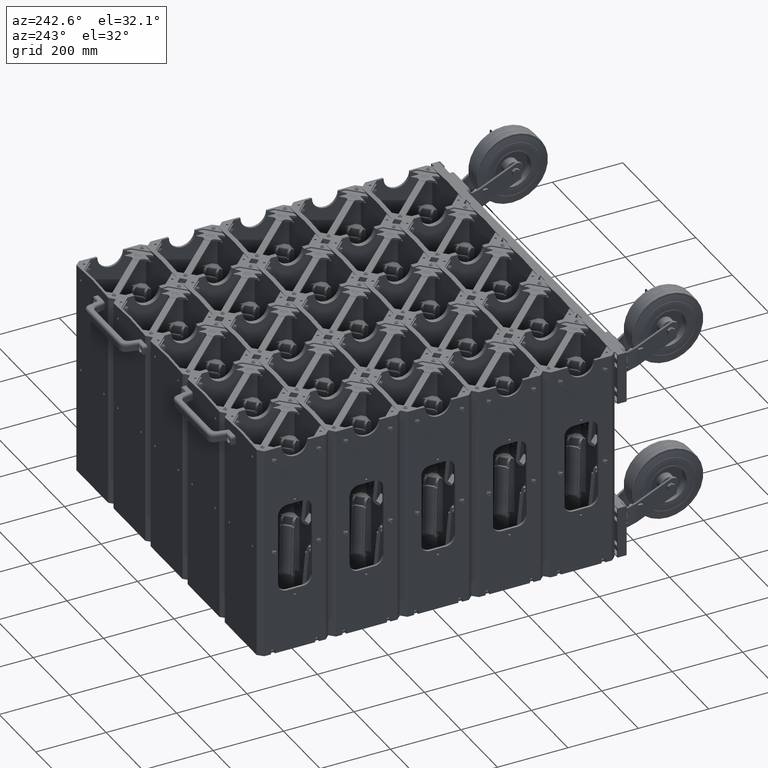
[diagram: clean part render]
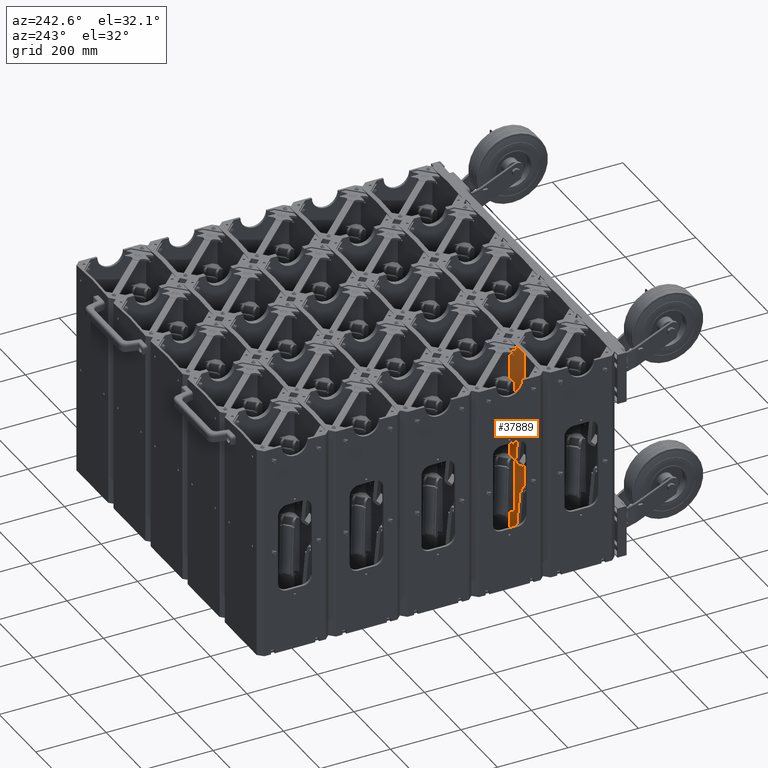
[diagram: same view with one face highlighted and labeled with its STEP entity id]
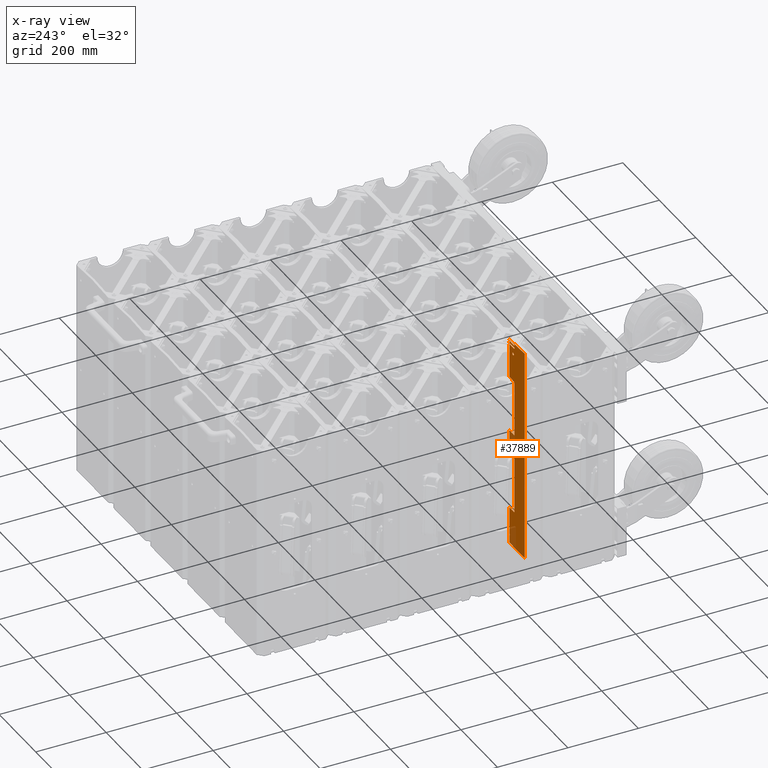
[diagram: x-ray of the same camera — body ghosted, the highlighted face saturated]
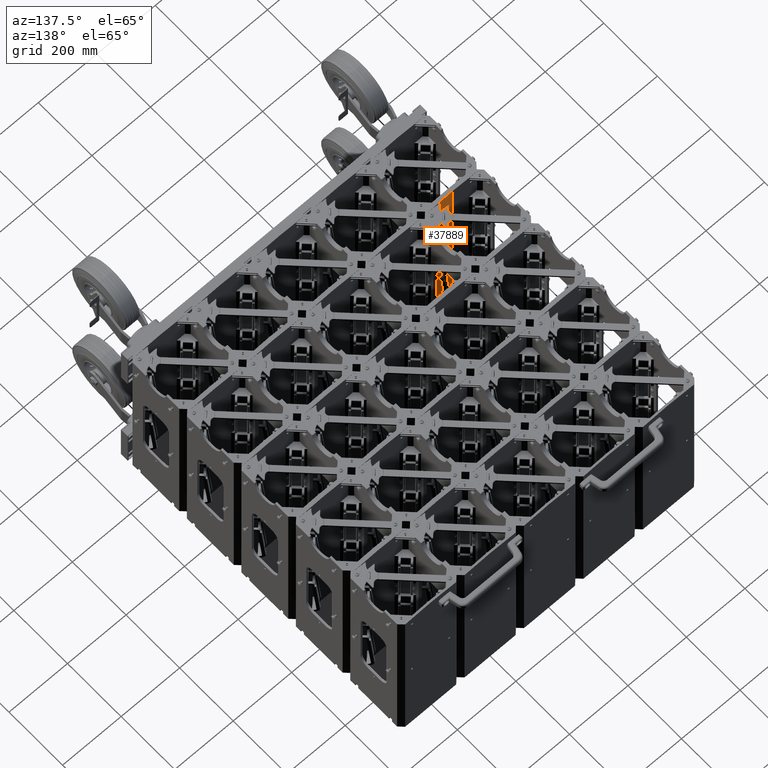
[diagram: same view with one face highlighted and labeled with its STEP entity id]
A machine part, auxiliary view. The second image highlights one B-rep face of the part: STEP entity #37889.
The next image is the same camera in x-ray: the body ghosted, the highlighted face saturated — about 9% of this face is hidden behind the body in this view.
A second angle (auxiliary view) of the same face is appended — the face is thin or edge-on in the first view.
In plain terms, the highlighted planar face has unit normal (0, 1, 0).
Its self-contained STEP definition (entity closure, byte-faithful):
#144 = CIRCLE ( 'NONE', #42054, 0.1329999999999999200 ) ;
#152 = CIRCLE ( 'NONE', #42058, 0.1329999999999999200 ) ;
#260 = EDGE_LOOP ( 'NONE', ( #30502, #30504 ) ) ;
#274 = EDGE_LOOP ( 'NONE', ( #30463, #30465, #30467, #30469, #30470, #30472, #30473, #30475, #30476, #30478, #30479, #30481, #30483, #30485, #30487, #30489, #30491, #30493, #30495, #30497 ) ) ;
#275 = EDGE_LOOP ( 'NONE', ( #30499, #30500 ) ) ;
#1499 = CARTESIAN_POINT ( 'NONE',  ( -3.749999999999932500, 2.500000000000015500, -0.1745312500000002200 ) ) ;
#1511 = DIRECTION ( 'NONE',  ( 1.000000000000000000, 1.365923996832082300E-016, 0.0000000000000000000 ) ) ;
#1512 = DIRECTION ( 'NONE',  ( 0.0000000000000000000, 1.000000000000000000, 0.0000000000000000000 ) ) ;
#1524 = CARTESIAN_POINT ( 'NONE',  ( -3.749999999999906300, 2.500000000000015500, -10.67453125000007900 ) ) ;
#1526 = DIRECTION ( 'NONE',  ( 1.000000000000000000, 1.365923996832082300E-016, 0.0000000000000000000 ) ) ;
#1527 = DIRECTION ( 'NONE',  ( 0.0000000000000000000, 1.000000000000000000, 0.0000000000000000000 ) ) ;
#1648 = CARTESIAN_POINT ( 'NONE',  ( -3.750000000000006700, 1.092739197465706100E-015, 12.10499999999992000 ) ) ;
#1651 = DIRECTION ( 'NONE',  ( 0.0000000000000000000, 0.0000000000000000000, 1.000000000000000000 ) ) ;
#1854 = LINE ( 'NONE', #1648, #1858 ) ;
#1858 = VECTOR ( 'NONE', #1651, 39.37007874015748100 ) ;
#2124 = CIRCLE ( 'NONE', #42115, 0.1329999999999999200 ) ;
#2125 = CIRCLE ( 'NONE', #42116, 0.1329999999999999200 ) ;
#2126 = LINE ( 'NONE', #3464, #2142 ) ;
#2128 = LINE ( 'NONE', #3429, #2130 ) ;
#2130 = VECTOR ( 'NONE', #3448, 39.37007874015748100 ) ;
#2136 = LINE ( 'NONE', #3460, #2137 ) ;
#2137 = VECTOR ( 'NONE', #3462, 39.37007874015748100 ) ;
#2139 = LINE ( 'NONE', #3491, #2160 ) ;
#2142 = VECTOR ( 'NONE', #3475, 39.37007874015748100 ) ;
#2148 = LINE ( 'NONE', #3487, #2149 ) ;
#2149 = VECTOR ( 'NONE', #3489, 39.37007874015748100 ) ;
#2151 = LINE ( 'NONE', #3518, #2166 ) ;
#2152 = LINE ( 'NONE', #3496, #2153 ) ;
#2153 = VECTOR ( 'NONE', #3498, 39.37007874015748100 ) ;
#2160 = VECTOR ( 'NONE', #3516, 39.37007874015748100 ) ;
#2161 = LINE ( 'NONE', #3527, #2184 ) ;
#2163 = LINE ( 'NONE', #3567, #2190 ) ;
#2166 = VECTOR ( 'NONE', #3529, 39.37007874015748100 ) ;
#2172 = LINE ( 'NONE', #3541, #2173 ) ;
#2173 = VECTOR ( 'NONE', #3543, 39.37007874015748100 ) ;
#2176 = LINE ( 'NONE', #3550, #2177 ) ;
#2177 = VECTOR ( 'NONE', #3552, 39.37007874015748100 ) ;
#2182 = LINE ( 'NONE', #3563, #2183 ) ;
#2183 = VECTOR ( 'NONE', #3565, 39.37007874015748100 ) ;
#2184 = VECTOR ( 'NONE', #3570, 39.37007874015748100 ) ;
#2185 = LINE ( 'NONE', #3612, #2208 ) ;
#2190 = VECTOR ( 'NONE', #3583, 39.37007874015748100 ) ;
#2194 = LINE ( 'NONE', #3590, #2195 ) ;
#2195 = VECTOR ( 'NONE', #3592, 39.37007874015748100 ) ;
#2208 = VECTOR ( 'NONE', #3624, 39.37007874015748100 ) ;
#2209 = VECTOR ( 'NONE', #3657, 39.37007874015748900 ) ;
#2210 = LINE ( 'NONE', #3627, #2211 ) ;
#2211 = VECTOR ( 'NONE', #3629, 39.37007874015748100 ) ;
#2214 = LINE ( 'NONE', #3636, #2215 ) ;
#2215 = VECTOR ( 'NONE', #3638, 39.37007874015748100 ) ;
#2221 = LINE ( 'NONE', #3626, #2209 ) ;
#2233 = LINE ( 'NONE', #3682, #2234 ) ;
#2234 = VECTOR ( 'NONE', #3684, 39.37007874015748100 ) ;
#2250 = LINE ( 'NONE', #3723, #2251 ) ;
#2251 = VECTOR ( 'NONE', #3725, 39.37007874015748100 ) ;
#3406 = CARTESIAN_POINT ( 'NONE',  ( -3.749999999999906300, 2.500000000000015500, -10.67453125000007900 ) ) ;
#3412 = CARTESIAN_POINT ( 'NONE',  ( -3.749999999999932500, 2.500000000000015500, -0.1745312500000002200 ) ) ;
#3420 = DIRECTION ( 'NONE',  ( 1.000000000000000000, 1.365923996832082300E-016, 0.0000000000000000000 ) ) ;
#3422 = DIRECTION ( 'NONE',  ( 0.0000000000000000000, 1.000000000000000000, 0.0000000000000000000 ) ) ;
#3426 = DIRECTION ( 'NONE',  ( 1.000000000000000000, 1.365923996832082300E-016, 0.0000000000000000000 ) ) ;
#3427 = DIRECTION ( 'NONE',  ( 0.0000000000000000000, 1.000000000000000000, 0.0000000000000000000 ) ) ;
#3429 = CARTESIAN_POINT ( 'NONE',  ( -3.749999999999954300, 3.333946609406738000, 7.716875000000031900 ) ) ;
#3448 = DIRECTION ( 'NONE',  ( 4.930380657631323800E-030, -1.000000000000000000, -1.094764425253763300E-047 ) ) ;
#3460 = CARTESIAN_POINT ( 'NONE',  ( -3.750000000000129200, 3.333946609406738000, 12.10499999999992000 ) ) ;
#3462 = DIRECTION ( 'NONE',  ( -0.0000000000000000000, -0.0000000000000000000, -1.000000000000000000 ) ) ;
#3464 = CARTESIAN_POINT ( 'NONE',  ( -3.749999999999928100, 2.240846073967627900, 7.716875000000031900 ) ) ;
#3475 = DIRECTION ( 'NONE',  ( 0.0000000000000000000, 0.0000000000000000000, -1.000000000000000000 ) ) ;
#3487 = CARTESIAN_POINT ( 'NONE',  ( -3.749999999999936900, 3.333946609406738000, 1.466875000000000800 ) ) ;
#3489 = DIRECTION ( 'NONE',  ( 4.930380657631323800E-030, -1.000000000000000000, -1.094764425253763300E-047 ) ) ;
#3491 = CARTESIAN_POINT ( 'NONE',  ( -3.750000000000129200, 3.333946609406738000, 12.10499999999992000 ) ) ;
#3496 = CARTESIAN_POINT ( 'NONE',  ( -3.750000000000032900, 3.333946609406738000, -1.283124999999999200 ) ) ;
#3498 = DIRECTION ( 'NONE',  ( 4.930380657631323800E-030, -1.000000000000000000, -1.094764425253763300E-047 ) ) ;
#3516 = DIRECTION ( 'NONE',  ( -0.0000000000000000000, -0.0000000000000000000, -1.000000000000000000 ) ) ;
#3518 = CARTESIAN_POINT ( 'NONE',  ( -3.749999999999958700, 2.240846073967627900, -1.283124999999999200 ) ) ;
#3527 = CARTESIAN_POINT ( 'NONE',  ( -3.749999999999949800, 3.333946609406738000, -11.52512500000007900 ) ) ;
#3529 = DIRECTION ( 'NONE',  ( 0.0000000000000000000, 0.0000000000000000000, -1.000000000000000000 ) ) ;
#3541 = CARTESIAN_POINT ( 'NONE',  ( -3.750000000000129200, 3.333946609406738000, -7.533124999999969000 ) ) ;
#3543 = DIRECTION ( 'NONE',  ( 4.930380657631323800E-030, -1.000000000000000000, -1.094764425253763300E-047 ) ) ;
#3550 = CARTESIAN_POINT ( 'NONE',  ( -3.749999999999949800, 3.333946609406738000, -11.40812500000008000 ) ) ;
#3552 = DIRECTION ( 'NONE',  ( 4.930380657631323800E-030, -1.000000000000000000, -1.094764425253763300E-047 ) ) ;
#3563 = CARTESIAN_POINT ( 'NONE',  ( -3.749999999999949800, 3.333946609406738000, -11.79112500000007900 ) ) ;
#3565 = DIRECTION ( 'NONE',  ( 4.930380657631323800E-030, -1.000000000000000000, -1.094764425253763300E-047 ) ) ;
#3567 = CARTESIAN_POINT ( 'NONE',  ( -3.749999999999928100, 2.240846073967627900, -11.40812500000008000 ) ) ;
#3570 = DIRECTION ( 'NONE',  ( 4.930380657631323800E-030, -1.000000000000000000, -1.094764425253763300E-047 ) ) ;
#3583 = DIRECTION ( 'NONE',  ( 0.0000000000000000000, 0.0000000000000000000, -1.000000000000000000 ) ) ;
#3590 = CARTESIAN_POINT ( 'NONE',  ( -3.749999999999949800, 3.333946609406738000, -11.79112500000007900 ) ) ;
#3592 = DIRECTION ( 'NONE',  ( 0.0000000000000000000, 0.0000000000000000000, 1.000000000000000000 ) ) ;
#3612 = CARTESIAN_POINT ( 'NONE',  ( -3.749999999999928100, 2.240846073967627900, -11.40812500000008000 ) ) ;
#3624 = DIRECTION ( 'NONE',  ( 0.0000000000000000000, 0.0000000000000000000, -1.000000000000000000 ) ) ;
#3626 = CARTESIAN_POINT ( 'NONE',  ( -3.749999999999928100, 5.256536670801101400, -11.82903182478301900 ) ) ;
#3627 = CARTESIAN_POINT ( 'NONE',  ( -3.750000000000129200, 3.333946609406738000, 12.10499999999992000 ) ) ;
#3629 = DIRECTION ( 'NONE',  ( -0.0000000000000000000, -0.0000000000000000000, -1.000000000000000000 ) ) ;
#3636 = CARTESIAN_POINT ( 'NONE',  ( -3.749999999999949800, 3.333946609406738000, -11.90812500000008000 ) ) ;
#3638 = DIRECTION ( 'NONE',  ( 4.930380657631323800E-030, -1.000000000000000000, -1.094764425253763300E-047 ) ) ;
#3657 = DIRECTION ( 'NONE',  ( 1.364045465210371500E-016, -0.9986247173150795100, -0.05242779765904170800 ) ) ;
#3682 = CARTESIAN_POINT ( 'NONE',  ( -3.750000000000107000, 4.000000000000009800, 11.85499999999992000 ) ) ;
#3684 = DIRECTION ( 'NONE',  ( 1.365923996832180900E-016, -1.000000000000000000, -1.094764425253763300E-047 ) ) ;
#3723 = CARTESIAN_POINT ( 'NONE',  ( -3.750000000000129200, 3.333946609406738000, 12.10499999999992000 ) ) ;
#3725 = DIRECTION ( 'NONE',  ( -0.0000000000000000000, -0.0000000000000000000, -1.000000000000000000 ) ) ;
#6753 = FACE_OUTER_BOUND ( 'NONE', #274, .T. ) ;
#6754 = FACE_BOUND ( 'NONE', #275, .T. ) ;
#6756 = FACE_BOUND ( 'NONE', #260, .T. ) ;
#8215 = CARTESIAN_POINT ( 'NONE',  ( -3.750000000000107000, 4.000000000000009800, 12.10499999999992000 ) ) ;
#8220 = PLANE ( 'NONE',  #8929 ) ;
#8221 = DIRECTION ( 'NONE',  ( 1.000000000000000000, 1.365923996832180900E-016, 1.079521069386805600E-076 ) ) ;
#8222 = DIRECTION ( 'NONE',  ( -1.365923996832180900E-016, 1.000000000000000000, 1.094764425253763300E-047 ) ) ;
#8929 = AXIS2_PLACEMENT_3D ( 'NONE', #8215, #8221, #8222 ) ;
#18138 = VERTEX_POINT ( 'NONE', #33319 ) ;
#18139 = VERTEX_POINT ( 'NONE', #33320 ) ;
#18142 = VERTEX_POINT ( 'NONE', #33323 ) ;
#18143 = VERTEX_POINT ( 'NONE', #33324 ) ;
#18195 = VERTEX_POINT ( 'NONE', #33376 ) ;
#18196 = VERTEX_POINT ( 'NONE', #33377 ) ;
#18577 = VERTEX_POINT ( 'NONE', #33758 ) ;
#18578 = VERTEX_POINT ( 'NONE', #33759 ) ;
#18580 = VERTEX_POINT ( 'NONE', #33761 ) ;
#18583 = VERTEX_POINT ( 'NONE', #33764 ) ;
#18584 = VERTEX_POINT ( 'NONE', #33765 ) ;
#18586 = VERTEX_POINT ( 'NONE', #33767 ) ;
#18588 = VERTEX_POINT ( 'NONE', #33769 ) ;
#18591 = VERTEX_POINT ( 'NONE', #33772 ) ;
#18592 = VERTEX_POINT ( 'NONE', #33773 ) ;
#18594 = VERTEX_POINT ( 'NONE', #33775 ) ;
#18596 = VERTEX_POINT ( 'NONE', #33777 ) ;
#18598 = VERTEX_POINT ( 'NONE', #33779 ) ;
#18600 = VERTEX_POINT ( 'NONE', #33781 ) ;
#18602 = VERTEX_POINT ( 'NONE', #33783 ) ;
#18605 = VERTEX_POINT ( 'NONE', #33786 ) ;
#18606 = VERTEX_POINT ( 'NONE', #33787 ) ;
#18608 = VERTEX_POINT ( 'NONE', #33789 ) ;
#18612 = VERTEX_POINT ( 'NONE', #33793 ) ;
#28813 = EDGE_CURVE ( 'NONE', #18138, #18139, #144, .T. ) ;
#28819 = EDGE_CURVE ( 'NONE', #18142, #18143, #152, .T. ) ;
#28870 = EDGE_CURVE ( 'NONE', #18195, #18196, #1854, .T. ) ;
#29021 = EDGE_CURVE ( 'NONE', #18143, #18142, #2124, .T. ) ;
#29022 = EDGE_CURVE ( 'NONE', #18139, #18138, #2125, .T. ) ;
#29026 = EDGE_CURVE ( 'NONE', #18577, #18578, #2128, .T. ) ;
#29029 = EDGE_CURVE ( 'NONE', #18583, #18584, #2136, .T. ) ;
#29032 = EDGE_CURVE ( 'NONE', #18578, #18580, #2126, .T. ) ;
#29035 = EDGE_CURVE ( 'NONE', #18583, #18580, #2148, .T. ) ;
#29037 = EDGE_CURVE ( 'NONE', #18584, #18586, #2152, .T. ) ;
#29041 = EDGE_CURVE ( 'NONE', #18591, #18592, #2139, .T. ) ;
#29044 = EDGE_CURVE ( 'NONE', #18586, #18588, #2151, .T. ) ;
#29047 = EDGE_CURVE ( 'NONE', #18591, #18588, #2172, .T. ) ;
#29049 = EDGE_CURVE ( 'NONE', #18592, #18594, #2176, .T. ) ;
#29052 = EDGE_CURVE ( 'NONE', #18600, #18602, #2182, .T. ) ;
#29053 = EDGE_CURVE ( 'NONE', #18598, #18596, #2161, .T. ) ;
#29056 = EDGE_CURVE ( 'NONE', #18594, #18596, #2163, .T. ) ;
#29058 = EDGE_CURVE ( 'NONE', #18600, #18598, #2194, .T. ) ;
#29065 = EDGE_CURVE ( 'NONE', #18602, #18605, #2185, .T. ) ;
#29066 = EDGE_CURVE ( 'NONE', #18606, #18608, #2210, .T. ) ;
#29068 = EDGE_CURVE ( 'NONE', #18606, #18605, #2214, .T. ) ;
#29072 = EDGE_CURVE ( 'NONE', #18608, #18195, #2221, .T. ) ;
#29078 = EDGE_CURVE ( 'NONE', #18612, #18196, #2233, .T. ) ;
#29087 = EDGE_CURVE ( 'NONE', #18612, #18577, #2250, .T. ) ;
#30463 = ORIENTED_EDGE ( 'NONE', *, *, #28870, .F. ) ;
#30465 = ORIENTED_EDGE ( 'NONE', *, *, #29072, .F. ) ;
#30467 = ORIENTED_EDGE ( 'NONE', *, *, #29066, .F. ) ;
#30469 = ORIENTED_EDGE ( 'NONE', *, *, #29068, .T. ) ;
#30470 = ORIENTED_EDGE ( 'NONE', *, *, #29065, .F. ) ;
#30472 = ORIENTED_EDGE ( 'NONE', *, *, #29052, .F. ) ;
#30473 = ORIENTED_EDGE ( 'NONE', *, *, #29058, .T. ) ;
#30475 = ORIENTED_EDGE ( 'NONE', *, *, #29053, .T. ) ;
#30476 = ORIENTED_EDGE ( 'NONE', *, *, #29056, .F. ) ;
#30478 = ORIENTED_EDGE ( 'NONE', *, *, #29049, .F. ) ;
#30479 = ORIENTED_EDGE ( 'NONE', *, *, #29041, .F. ) ;
#30481 = ORIENTED_EDGE ( 'NONE', *, *, #29047, .T. ) ;
#30483 = ORIENTED_EDGE ( 'NONE', *, *, #29044, .F. ) ;
#30485 = ORIENTED_EDGE ( 'NONE', *, *, #29037, .F. ) ;
#30487 = ORIENTED_EDGE ( 'NONE', *, *, #29029, .F. ) ;
#30489 = ORIENTED_EDGE ( 'NONE', *, *, #29035, .T. ) ;
#30491 = ORIENTED_EDGE ( 'NONE', *, *, #29032, .F. ) ;
#30493 = ORIENTED_EDGE ( 'NONE', *, *, #29026, .F. ) ;
#30495 = ORIENTED_EDGE ( 'NONE', *, *, #29087, .F. ) ;
#30497 = ORIENTED_EDGE ( 'NONE', *, *, #29078, .T. ) ;
#30499 = ORIENTED_EDGE ( 'NONE', *, *, #28813, .F. ) ;
#30500 = ORIENTED_EDGE ( 'NONE', *, *, #29022, .F. ) ;
#30502 = ORIENTED_EDGE ( 'NONE', *, *, #28819, .F. ) ;
#30504 = ORIENTED_EDGE ( 'NONE', *, *, #29021, .F. ) ;
#33319 = CARTESIAN_POINT ( 'NONE',  ( -3.749999999999932500, 2.367000000000015100, -0.1745312500000018000 ) ) ;
#33320 = CARTESIAN_POINT ( 'NONE',  ( -3.749999999999932500, 2.633000000000015100, -0.1745312500000018000 ) ) ;
#33323 = CARTESIAN_POINT ( 'NONE',  ( -3.749999999999906300, 2.367000000000015500, -10.67453124999990000 ) ) ;
#33324 = CARTESIAN_POINT ( 'NONE',  ( -3.749999999999906300, 2.633000000000015100, -10.67453124999990000 ) ) ;
#33376 = CARTESIAN_POINT ( 'NONE',  ( -3.749999999999976000, 1.092739197465706500E-015, -12.10500000000007900 ) ) ;
#33377 = CARTESIAN_POINT ( 'NONE',  ( -3.750000000000006700, 1.092739197465706100E-015, 11.85499999999992000 ) ) ;
#33758 = CARTESIAN_POINT ( 'NONE',  ( -3.749999999999954300, 3.333946609406738000, 7.716875000000031900 ) ) ;
#33759 = CARTESIAN_POINT ( 'NONE',  ( -3.749999999999928100, 2.240846073967627900, 7.716875000000030100 ) ) ;
#33761 = CARTESIAN_POINT ( 'NONE',  ( -3.749999999999932500, 2.240846073967627900, 1.466875000000001900 ) ) ;
#33764 = CARTESIAN_POINT ( 'NONE',  ( -3.749999999999936900, 3.333946609406738000, 1.466875000000001900 ) ) ;
#33765 = CARTESIAN_POINT ( 'NONE',  ( -3.750000000000032900, 3.333946609406738000, -1.283124999999999200 ) ) ;
#33767 = CARTESIAN_POINT ( 'NONE',  ( -3.749999999999958700, 2.240846073967627900, -1.283124999999999200 ) ) ;
#33769 = CARTESIAN_POINT ( 'NONE',  ( -3.750000000000054600, 2.240846073967627900, -7.533124999999969000 ) ) ;
#33772 = CARTESIAN_POINT ( 'NONE',  ( -3.750000000000129200, 3.333946609406738000, -7.533124999999969000 ) ) ;
#33773 = CARTESIAN_POINT ( 'NONE',  ( -3.749999999999949800, 3.333946609406738000, -11.40812500000008200 ) ) ;
#33775 = CARTESIAN_POINT ( 'NONE',  ( -3.749999999999928100, 2.240846073967627900, -11.40812500000008200 ) ) ;
#33777 = CARTESIAN_POINT ( 'NONE',  ( -3.749999999999928100, 2.240846073967627900, -11.52512500000007900 ) ) ;
#33779 = CARTESIAN_POINT ( 'NONE',  ( -3.749999999999949800, 3.333946609406738000, -11.52512500000007900 ) ) ;
#33781 = CARTESIAN_POINT ( 'NONE',  ( -3.749999999999949800, 3.333946609406738000, -11.79112500000007900 ) ) ;
#33783 = CARTESIAN_POINT ( 'NONE',  ( -3.749999999999928100, 2.240846073967627900, -11.79112500000007900 ) ) ;
#33786 = CARTESIAN_POINT ( 'NONE',  ( -3.749999999999928100, 2.240846073967627900, -11.90812500000008000 ) ) ;
#33787 = CARTESIAN_POINT ( 'NONE',  ( -3.749999999999949800, 3.333946609406738000, -11.90812500000008000 ) ) ;
#33789 = CARTESIAN_POINT ( 'NONE',  ( -3.749999999999949800, 3.333946609406738000, -11.92996780300622500 ) ) ;
#33793 = CARTESIAN_POINT ( 'NONE',  ( -3.750000000000129200, 3.333946609406738000, 11.85499999999992000 ) ) ;
#37889 = ADVANCED_FACE ( 'NONE', ( #6753, #6754, #6756 ), #8220, .T. ) ;
#42054 = AXIS2_PLACEMENT_3D ( 'NONE', #1499, #1511, #1512 ) ;
#42058 = AXIS2_PLACEMENT_3D ( 'NONE', #1524, #1526, #1527 ) ;
#42115 = AXIS2_PLACEMENT_3D ( 'NONE', #3406, #3420, #3422 ) ;
#42116 = AXIS2_PLACEMENT_3D ( 'NONE', #3412, #3426, #3427 ) ;